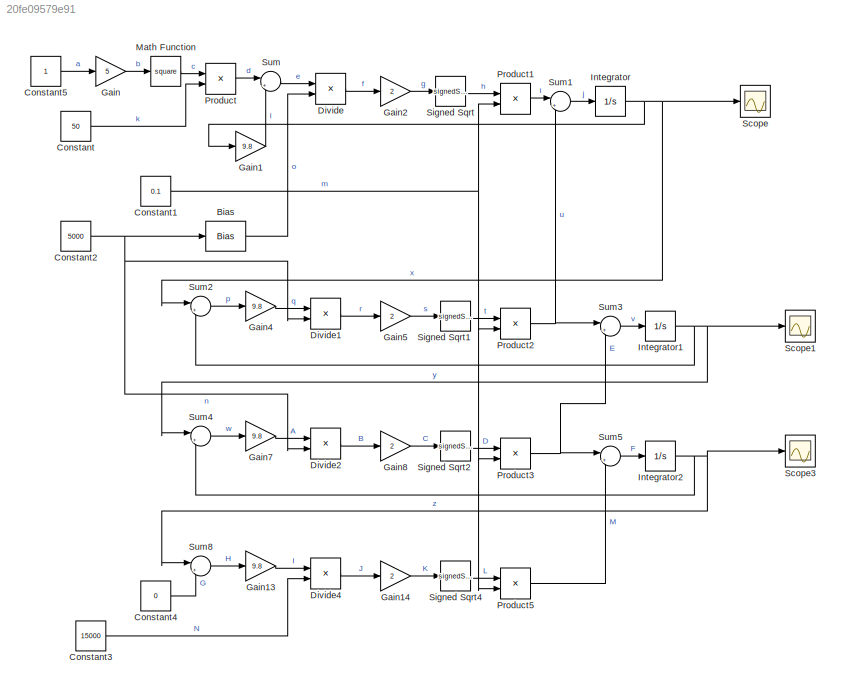
MODEL slx_20fe09579e91
KIND model
CONFIG AbsTol = auto
CONFIG EnableMultiTasking = off
CONFIG FixedStep = auto
CONFIG MaxStep = auto
CONFIG MinStep = auto
CONFIG RelTol = 1e-3
CONFIG SampleTimeConstraint = Unconstrained
CONFIG Solver = ode45
CONFIG SolverName = ode45
CONFIG StartTime = 0.0
CONFIG StopTime = 100
BLOCK [Bias] Bias
  Bias = 1
  SaturateOnIntegerOverflow = off
BLOCK [Constant] Constant
  Value = 50
BLOCK [Constant] Constant1
  Value = 0.1
BLOCK [Constant] Constant2
  Value = 5000
BLOCK [Constant] Constant3
  Value = 15000
BLOCK [Constant] Constant4
  Value = 0
BLOCK [Constant] Constant5
BLOCK [Product] Divide
  Inputs = */
  Ports = [2, 1]
BLOCK [Product] Divide1
  Inputs = */
  Ports = [2, 1]
BLOCK [Product] Divide2
  Inputs = */
  Ports = [2, 1]
BLOCK [Product] Divide4
  Inputs = */
  Ports = [2, 1]
BLOCK [Gain] Gain
  Gain = 5
BLOCK [Gain] Gain1
  Gain = 9.8
BLOCK [Gain] Gain13
  Gain = 9.8
BLOCK [Gain] Gain14
  Gain = 2
BLOCK [Gain] Gain2
  Gain = 2
BLOCK [Gain] Gain4
  Gain = 9.8
BLOCK [Gain] Gain5
  Gain = 2
BLOCK [Gain] Gain7
  Gain = 9.8
BLOCK [Gain] Gain8
  Gain = 2
BLOCK [Integrator] Integrator
  Ports = [1, 1]
BLOCK [Integrator] Integrator1
  Ports = [1, 1]
BLOCK [Integrator] Integrator2
  Ports = [1, 1]
BLOCK [Math] Math Function
  Operator = square
  Ports = [1, 1]
BLOCK [Product] Product
  Ports = [2, 1]
BLOCK [Product] Product1
  Ports = [2, 1]
BLOCK [Product] Product2
  Ports = [2, 1]
BLOCK [Product] Product3
  Ports = [2, 1]
BLOCK [Product] Product5
  Ports = [2, 1]
BLOCK [Scope] Scope
  Floating = off
  NumInputPorts = 1
  Ports = [1]
  ScopeSpecificationString = Simulink.scopes.TimeScopeBlockCfg('CurrentConfiguration', extmgr.ConfigurationSet(extmgr.Configuration('Core','General UI',true),extmgr.Configuration('Core','Source UI',true),extmgr.Configuration('Sources','WiredSimulink',true,'DataLoggingVariableName','ScopeData1'),extmgr.Configuration('Visuals','Time Domain',true,'SerializedDisplays',{struct('MinYLimReal','-0.74865','MaxYLimReal','6.73781','YLab...<+1360ch>
BLOCK [Scope] Scope1
  Floating = off
  NumInputPorts = 1
  Ports = [1]
  ScopeSpecificationString = Simulink.scopes.TimeScopeBlockCfg('CurrentConfiguration', extmgr.ConfigurationSet(extmgr.Configuration('Core','General UI',true),extmgr.Configuration('Core','Source UI',true),extmgr.Configuration('Sources','WiredSimulink',true,'DataLoggingVariableName','ScopeData2'),extmgr.Configuration('Visuals','Time Domain',true,'SerializedDisplays',{struct('MinYLimReal','-0.08994','MaxYLimReal','0.8095','YLabe...<+1356ch>
BLOCK [Scope] Scope3
  Floating = off
  NumInputPorts = 1
  Ports = [1]
  ScopeSpecificationString = Simulink.scopes.TimeScopeBlockCfg('CurrentConfiguration', extmgr.ConfigurationSet(extmgr.Configuration('Core','General UI',true),extmgr.Configuration('Core','Source UI',true),extmgr.Configuration('Sources','WiredSimulink',true,'DataLoggingVariableName','ScopeData3'),extmgr.Configuration('Visuals','Time Domain',true,'SerializedDisplays',{struct('MinYLimReal','-0.02353','MaxYLimReal','0.21175','YLab...<+1360ch>
BLOCK [Sqrt] Signed Sqrt
  Operator = signedSqrt
BLOCK [Sqrt] Signed Sqrt1
  Operator = signedSqrt
BLOCK [Sqrt] Signed Sqrt2
  Operator = signedSqrt
BLOCK [Sqrt] Signed Sqrt4
  Operator = signedSqrt
BLOCK [Sum] Sum
  Inputs = |+-
  Ports = [2, 1]
BLOCK [Sum] Sum1
  Inputs = |+-
  Ports = [2, 1]
BLOCK [Sum] Sum2
  Inputs = |+-
  Ports = [2, 1]
BLOCK [Sum] Sum3
  Inputs = |+-
  Ports = [2, 1]
BLOCK [Sum] Sum4
  Inputs = |+-
  Ports = [2, 1]
BLOCK [Sum] Sum5
  Inputs = |+-
  Ports = [2, 1]
BLOCK [Sum] Sum8
  Inputs = |+-
  Ports = [2, 1]
LINE Bias:1 -> Divide:2
NET Constant1:1 -> Product1:2, Product2:2, Product3:2, Product5:2
NET Constant2:1 -> Bias:1, Divide1:2, Divide2:2
LINE Constant3:1 -> Divide4:2
LINE Constant4:1 -> Sum8:2
LINE Constant5:1 -> Gain:1
LINE Constant:1 -> Product:2
LINE Divide1:1 -> Gain5:1
LINE Divide2:1 -> Gain8:1
LINE Divide4:1 -> Gain14:1
LINE Divide:1 -> Gain2:1
LINE Gain13:1 -> Divide4:1
LINE Gain14:1 -> Signed Sqrt4:1
LINE Gain1:1 -> Sum:2
LINE Gain2:1 -> Signed Sqrt:1
LINE Gain4:1 -> Divide1:1
LINE Gain5:1 -> Signed Sqrt1:1
LINE Gain7:1 -> Divide2:1
LINE Gain8:1 -> Signed Sqrt2:1
LINE Gain:1 -> Math Function:1
NET Integrator1:1 -> Scope1:1, Sum2:2, Sum4:1
NET Integrator2:1 -> Scope3:1, Sum4:2, Sum8:1
NET Integrator:1 -> Gain1:1, Scope:1, Sum2:1
LINE Math Function:1 -> Product:1
LINE Product1:1 -> Sum1:1
NET Product2:1 -> Sum1:2, Sum3:1
NET Product3:1 -> Sum3:2, Sum5:1
LINE Product5:1 -> Sum5:2
LINE Product:1 -> Sum:1
LINE Signed Sqrt1:1 -> Product2:1
LINE Signed Sqrt2:1 -> Product3:1
LINE Signed Sqrt4:1 -> Product5:1
LINE Signed Sqrt:1 -> Product1:1
LINE Sum1:1 -> Integrator:1
LINE Sum2:1 -> Gain4:1
LINE Sum3:1 -> Integrator1:1
LINE Sum4:1 -> Gain7:1
LINE Sum5:1 -> Integrator2:1
LINE Sum8:1 -> Gain13:1
LINE Sum:1 -> Divide:1
note: NET lines group one-source signal fan-out (src -> all destinations, sorted); 1:1 wires keep LINE
